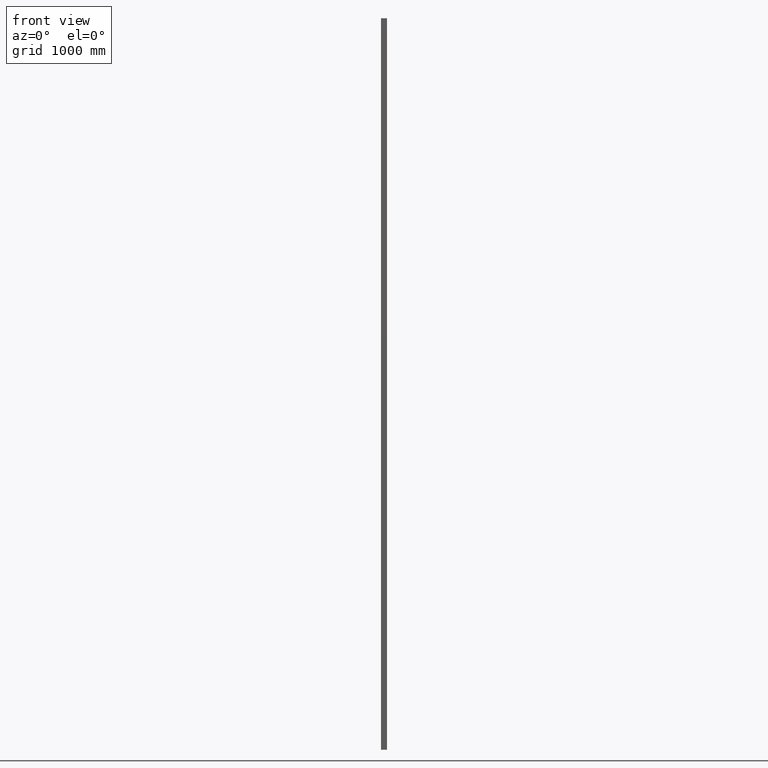
[diagram: clean part render]
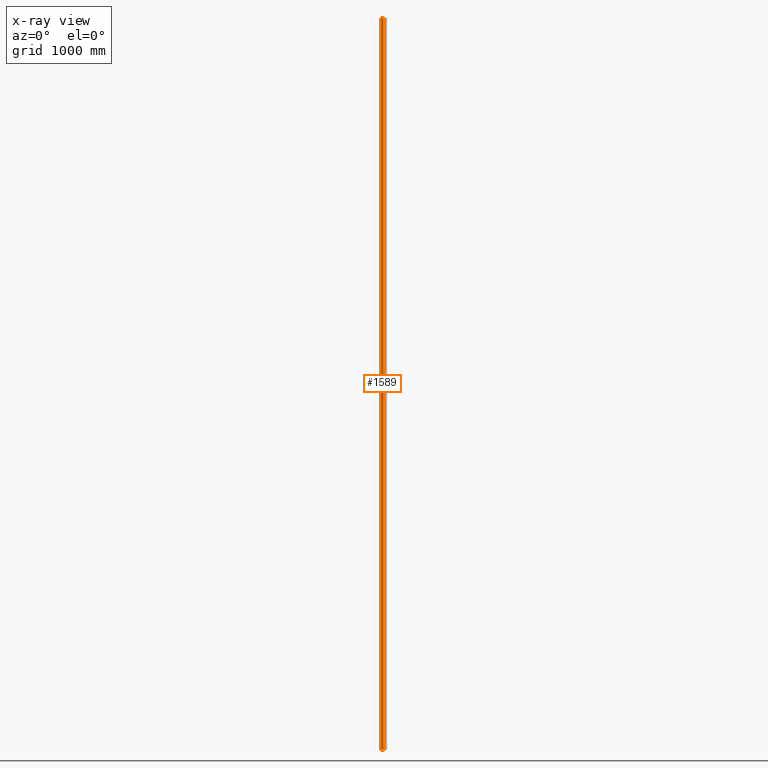
[diagram: x-ray — body ghosted, one internal face saturated and labeled with its STEP entity id]
A machine part, front view, then the same camera in x-ray: the body is ghosted and one INTERNAL B-rep face — a face not visible from any outside direction — is saturated and labeled: STEP entity #1589.
In plain terms, the highlighted planar face has unit normal (0, 1, 0).
Its self-contained STEP definition (entity closure, byte-faithful):
#489 = EDGE_LOOP ( 'NONE', ( #1302, #746, #745, #744 ) ) ;
#744 = ORIENTED_EDGE ( 'NONE', *, *, #3913, .T. ) ;
#745 = ORIENTED_EDGE ( 'NONE', *, *, #3917, .T. ) ;
#746 = ORIENTED_EDGE ( 'NONE', *, *, #3916, .F. ) ;
#1146 = LINE ( 'NONE', #1745, #1147 ) ;
#1147 = VECTOR ( 'NONE', #1743, 1000.000000000000000 ) ;
#1150 = LINE ( 'NONE', #1730, #1151 ) ;
#1151 = VECTOR ( 'NONE', #1727, 1000.000000000000000 ) ;
#1152 = LINE ( 'NONE', #1723, #1153 ) ;
#1153 = VECTOR ( 'NONE', #1720, 1000.000000000000000 ) ;
#1154 = LINE ( 'NONE', #1717, #1155 ) ;
#1155 = VECTOR ( 'NONE', #1716, 1000.000000000000000 ) ;
#1302 = ORIENTED_EDGE ( 'NONE', *, *, #3915, .F. ) ;
#1589 = ADVANCED_FACE ( 'NONE', ( #3777 ), #2546, .T. ) ;
#1716 = DIRECTION ( 'NONE',  ( -1.000000000000000000, -0.0000000000000000000, -0.0000000000000000000 ) ) ;
#1717 = CARTESIAN_POINT ( 'NONE',  ( -25.00000000000000000, 25.00000000000000000, -6000.000000000000000 ) ) ;
#1720 = DIRECTION ( 'NONE',  ( 0.0000000000000000000, 0.0000000000000000000, 1.000000000000000000 ) ) ;
#1723 = CARTESIAN_POINT ( 'NONE',  ( -4.000000000000000000, 25.00000000000000000, -6000.000000000000000 ) ) ;
#1727 = DIRECTION ( 'NONE',  ( -1.000000000000000000, -0.0000000000000000000, -0.0000000000000000000 ) ) ;
#1730 = CARTESIAN_POINT ( 'NONE',  ( -25.00000000000000000, 25.00000000000000000, 0.0000000000000000000 ) ) ;
#1743 = DIRECTION ( 'NONE',  ( 0.0000000000000000000, 0.0000000000000000000, 1.000000000000000000 ) ) ;
#1745 = CARTESIAN_POINT ( 'NONE',  ( -25.00000000000000000, 25.00000000000000000, -6000.000000000000000 ) ) ;
#1840 = CARTESIAN_POINT ( 'NONE',  ( -25.00000000000000000, 25.00000000000000000, 0.0000000000000000000 ) ) ;
#1841 = CARTESIAN_POINT ( 'NONE',  ( -25.00000000000000000, 25.00000000000000000, -6000.000000000000000 ) ) ;
#1842 = CARTESIAN_POINT ( 'NONE',  ( -4.000000000000000000, 25.00000000000000000, 0.0000000000000000000 ) ) ;
#1843 = CARTESIAN_POINT ( 'NONE',  ( -4.000000000000000000, 25.00000000000000000, -6000.000000000000000 ) ) ;
#2541 = DIRECTION ( 'NONE',  ( 0.0000000000000000000, -0.0000000000000000000, 1.000000000000000000 ) ) ;
#2542 = DIRECTION ( 'NONE',  ( 0.0000000000000000000, 1.000000000000000000, 0.0000000000000000000 ) ) ;
#2544 = CARTESIAN_POINT ( 'NONE',  ( -25.00000000000000000, 25.00000000000000000, -6000.000000000000000 ) ) ;
#2546 = PLANE ( 'NONE',  #4401 ) ;
#3576 = VERTEX_POINT ( 'NONE', #1843 ) ;
#3577 = VERTEX_POINT ( 'NONE', #1842 ) ;
#3578 = VERTEX_POINT ( 'NONE', #1841 ) ;
#3579 = VERTEX_POINT ( 'NONE', #1840 ) ;
#3777 = FACE_OUTER_BOUND ( 'NONE', #489, .T. ) ;
#3913 = EDGE_CURVE ( 'NONE', #3578, #3579, #1146, .T. ) ;
#3915 = EDGE_CURVE ( 'NONE', #3577, #3579, #1150, .T. ) ;
#3916 = EDGE_CURVE ( 'NONE', #3576, #3577, #1152, .T. ) ;
#3917 = EDGE_CURVE ( 'NONE', #3576, #3578, #1154, .T. ) ;
#4401 = AXIS2_PLACEMENT_3D ( 'NONE', #2544, #2542, #2541 ) ;